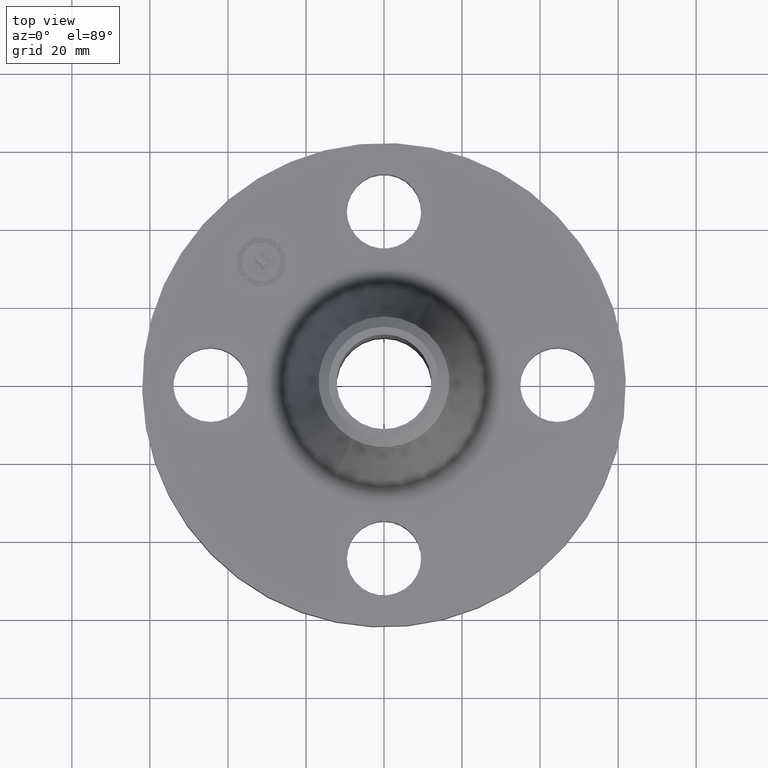
[diagram: clean part render]
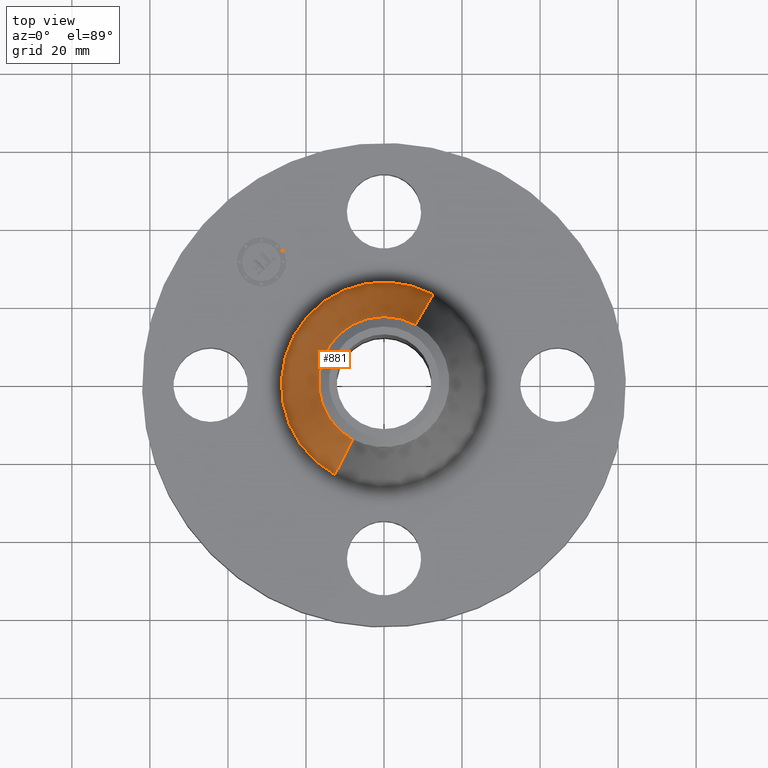
[diagram: same view with one face highlighted and labeled with its STEP entity id]
A machine part, top view. The second image highlights one B-rep face of the part: STEP entity #881.
In plain terms, the highlighted conical surface has half-angle 15.474 deg.
Its self-contained STEP definition (entity closure, byte-faithful):
#693=AXIS2_PLACEMENT_3D('Circle Axis2P3D',#691,#692,$) ;
#854=AXIS2_PLACEMENT_3D('Cone Axis2P3D',#851,#852,#853) ;
#865=AXIS2_PLACEMENT_3D('Circle Axis2P3D',#863,#864,$) ;
#688=CARTESIAN_POINT('Vertex',(-0.496513817097,-0.908862445855,0.707984487806)) ;
#691=CARTESIAN_POINT('Axis2P3D Location',(0.,0.,0.707984487807)) ;
#695=CARTESIAN_POINT('Vertex',(0.496513817097,0.908862445855,0.707984487807)) ;
#851=CARTESIAN_POINT('Axis2P3D Location',(0.,0.,2.06492912712)) ;
#856=CARTESIAN_POINT('Line Origine',(-0.406467336287,-0.74403346835,1.38645680746)) ;
#860=CARTESIAN_POINT('Vertex',(-0.31642085548,-0.57920449085,2.06492912712)) ;
#863=CARTESIAN_POINT('Axis2P3D Location',(0.,0.,2.06492912712)) ;
#867=CARTESIAN_POINT('Vertex',(0.31642085548,0.57920449085,2.06492912712)) ;
#870=CARTESIAN_POINT('Line Origine',(0.406467336287,0.74403346835,1.38645680746)) ;
#692=DIRECTION('Axis2P3D Direction',(-0.,0.,-0.0393700787402)) ;
#852=DIRECTION('Axis2P3D Direction',(0.,0.,-0.0393700787402)) ;
#853=DIRECTION('Axis2P3D XDirection',(-0.0188750212049,-0.0345504945626,0.)) ;
#857=DIRECTION('Vector Direction',(-0.0050357789301,-0.0092179315008,-0.0379430332132)) ;
#864=DIRECTION('Axis2P3D Direction',(-0.,0.,-0.0393700787402)) ;
#871=DIRECTION('Vector Direction',(0.0050357789301,0.0092179315008,-0.0379430332132)) ;
#858=VECTOR('Line Direction',#857,0.0393700787402) ;
#872=VECTOR('Line Direction',#871,0.0393700787402) ;
#876=ORIENTED_EDGE('',*,*,#697,.F.) ;
#877=ORIENTED_EDGE('',*,*,#862,.T.) ;
#878=ORIENTED_EDGE('',*,*,#869,.T.) ;
#879=ORIENTED_EDGE('',*,*,#874,.F.) ;
#881=ADVANCED_FACE('PartBody',(#880),#855,.T.) ;
#694=CIRCLE('generated circle',#693,1.03564323783) ;
#866=CIRCLE('generated circle',#865,0.660000000003) ;
#855=CONICAL_SURFACE('Cone',#854,0.660000000003,0.270066923464) ;
#697=EDGE_CURVE('',#689,#696,#694,.T.) ;
#862=EDGE_CURVE('',#689,#861,#859,.F.) ;
#869=EDGE_CURVE('',#861,#868,#866,.T.) ;
#874=EDGE_CURVE('',#696,#868,#873,.F.) ;
#875=EDGE_LOOP('',(#876,#877,#878,#879)) ;
#880=FACE_OUTER_BOUND('',#875,.T.) ;
#859=LINE('Line',#856,#858) ;
#873=LINE('Line',#870,#872) ;
#689=VERTEX_POINT('',#688) ;
#696=VERTEX_POINT('',#695) ;
#861=VERTEX_POINT('',#860) ;
#868=VERTEX_POINT('',#867) ;